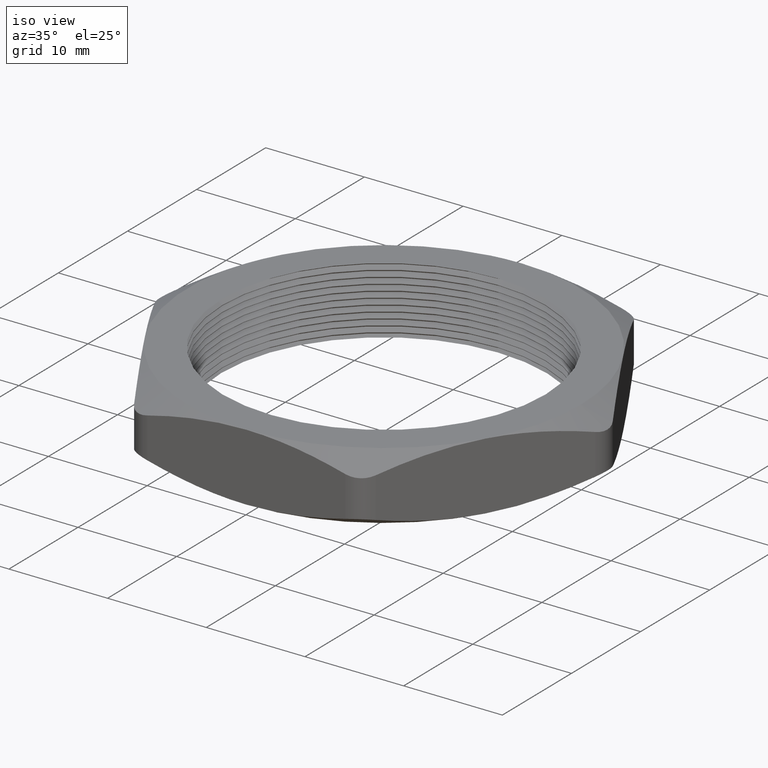
[diagram: clean part render]
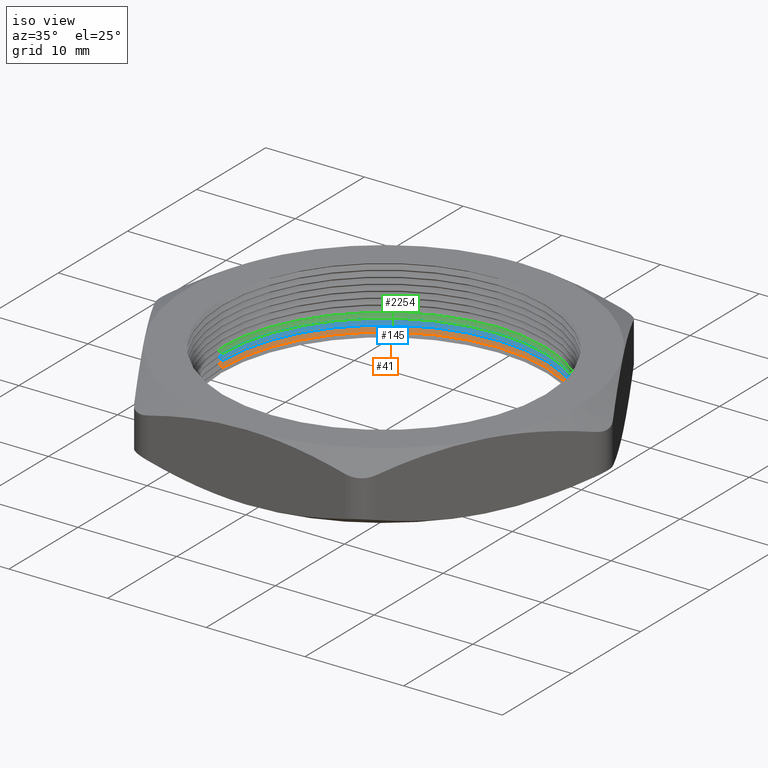
[diagram: same view with three faces highlighted in distinct colors, each labeled with its STEP entity id]
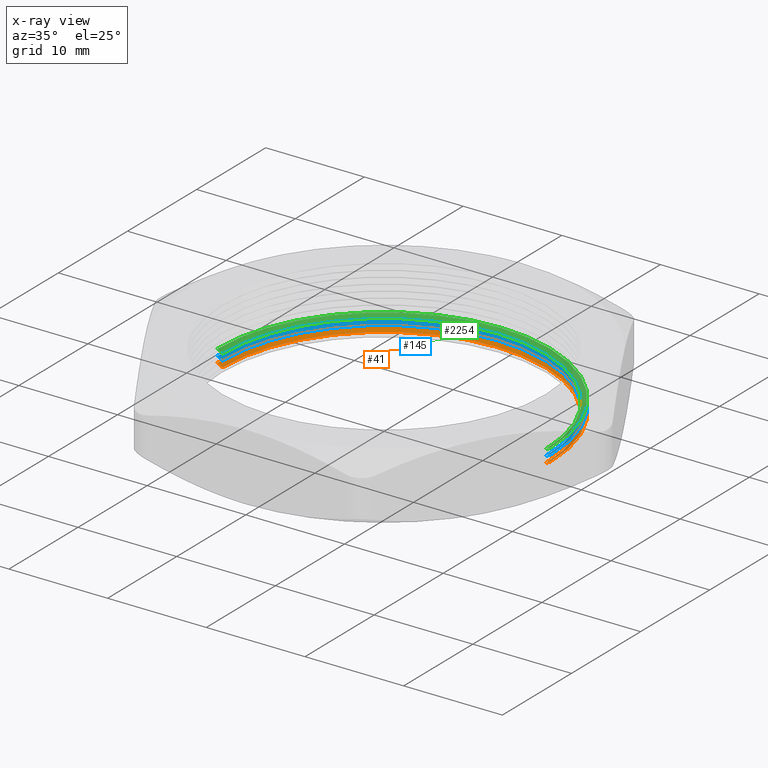
[diagram: x-ray of the same camera — body ghosted, the three highlighted faces saturated]
A machine part, iso view with three faces highlighted in distinct colors.
The next image is the same camera in x-ray (body ghosted, the three faces saturated) — at least one of them is partly hidden behind the body in this view.
Their STEP definitions:

[orange] entity #41 — the highlighted conical surface has half-angle 60 deg.
#40 = EDGE_CURVE ( 'NONE', #2501, #2505, #359, .T. ) ;
#41 = ADVANCED_FACE ( 'NONE', ( #350 ), #349, .F. ) ;
#42 = EDGE_LOOP ( 'NONE', ( #43, #44, #45, #46 ) ) ;
#43 = ORIENTED_EDGE ( 'NONE', *, *, #2508, .F. ) ;
#44 = ORIENTED_EDGE ( 'NONE', *, *, #2629, .F. ) ;
#45 = ORIENTED_EDGE ( 'NONE', *, *, #2500, .T. ) ;
#46 = ORIENTED_EDGE ( 'NONE', *, *, #40, .T. ) ;
#349 = CONICAL_SURFACE ( 'NONE', #408, 0.6449999999999999100, 1.047197551196592500 ) ;
#350 = FACE_OUTER_BOUND ( 'NONE', #42, .T. ) ;
#351 = DIRECTION ( 'NONE',  ( 1.000000000000000000, 0.0000000000000000000, 0.0000000000000000000 ) ) ;
#352 = DIRECTION ( 'NONE',  ( 0.0000000000000000000, 0.0000000000000000000, 1.000000000000000000 ) ) ;
#353 = CARTESIAN_POINT ( 'NONE',  ( 0.0000000000000000000, 0.0000000000000000000, 0.03345299461620768200 ) ) ;
#354 = AXIS2_PLACEMENT_3D ( 'NONE', #353, #352, #351 ) ;
#359 = CIRCLE ( 'NONE', #354, 0.6650000000000000400 ) ;
#405 = DIRECTION ( 'NONE',  ( 1.000000000000000000, 0.0000000000000000000, 0.0000000000000000000 ) ) ;
#406 = DIRECTION ( 'NONE',  ( 0.0000000000000000000, 0.0000000000000000000, 1.000000000000000000 ) ) ;
#407 = CARTESIAN_POINT ( 'NONE',  ( 0.0000000000000000000, 0.0000000000000000000, 0.02190598923241499400 ) ) ;
#408 = AXIS2_PLACEMENT_3D ( 'NONE', #407, #406, #405 ) ;
#1634 = CARTESIAN_POINT ( 'NONE',  ( -0.6650000000000000400, 0.0000000000000000000, 0.03345299461620768200 ) ) ;
#1640 = CARTESIAN_POINT ( 'NONE',  ( 0.6650000000000000400, 8.143901214329899300E-017, 0.03345299461620768200 ) ) ;
#1641 = DIRECTION ( 'NONE',  ( 0.8660254037844360400, 0.0000000000000000000, 0.5000000000000045500 ) ) ;
#1642 = VECTOR ( 'NONE', #1641, 39.37007874015748100 ) ;
#1643 = CARTESIAN_POINT ( 'NONE',  ( 0.6449999999999999100, 0.0000000000000000000, 0.02190598923241499400 ) ) ;
#1648 = LINE ( 'NONE', #1643, #1642 ) ;
#1690 = CARTESIAN_POINT ( 'NONE',  ( 0.6449999999999999100, 7.898971854500428000E-017, 0.02190598923241499400 ) ) ;
#1691 = CARTESIAN_POINT ( 'NONE',  ( -0.6449999999999999100, 0.0000000000000000000, 0.02190598923241499400 ) ) ;
#1692 = DIRECTION ( 'NONE',  ( -0.8660254037844360400, 1.060575238724903700E-016, 0.5000000000000045500 ) ) ;
#1693 = VECTOR ( 'NONE', #1692, 39.37007874015748100 ) ;
#1694 = CARTESIAN_POINT ( 'NONE',  ( -0.6449999999999999100, 7.898971854500428000E-017, 0.02190598923241499400 ) ) ;
#1695 = LINE ( 'NONE', #1694, #1693 ) ;
#1818 = DIRECTION ( 'NONE',  ( 0.0000000000000000000, 0.0000000000000000000, 1.000000000000000000 ) ) ;
#1819 = AXIS2_PLACEMENT_3D ( 'NONE', #1825, #1818, #1884 ) ;
#1820 = CIRCLE ( 'NONE', #1819, 0.6449999999999999100 ) ;
#1825 = CARTESIAN_POINT ( 'NONE',  ( 0.0000000000000000000, 0.0000000000000000000, 0.02190598923241499400 ) ) ;
#1884 = DIRECTION ( 'NONE',  ( 1.000000000000000000, 0.0000000000000000000, 0.0000000000000000000 ) ) ;
#2500 = EDGE_CURVE ( 'NONE', #2510, #2501, #1648, .T. ) ;
#2501 = VERTEX_POINT ( 'NONE', #1640 ) ;
#2505 = VERTEX_POINT ( 'NONE', #1634 ) ;
#2508 = EDGE_CURVE ( 'NONE', #2509, #2505, #1695, .T. ) ;
#2509 = VERTEX_POINT ( 'NONE', #1691 ) ;
#2510 = VERTEX_POINT ( 'NONE', #1690 ) ;
#2629 = EDGE_CURVE ( 'NONE', #2510, #2509, #1820, .T. ) ;

[blue] entity #145 — the highlighted conical surface has half-angle 60 deg.
#19 = ORIENTED_EDGE ( 'NONE', *, *, #2359, .F. ) ;
#20 = ORIENTED_EDGE ( 'NONE', *, *, #2155, .T. ) ;
#21 = ORIENTED_EDGE ( 'NONE', *, *, #2186, .T. ) ;
#145 = ADVANCED_FACE ( 'NONE', ( #595 ), #593, .F. ) ;
#147 = ORIENTED_EDGE ( 'NONE', *, *, #2529, .F. ) ;
#151 = EDGE_LOOP ( 'NONE', ( #147, #19, #20, #21 ) ) ;
#590 = DIRECTION ( 'NONE',  ( 1.000000000000000000, 0.0000000000000000000, 0.0000000000000000000 ) ) ;
#591 = DIRECTION ( 'NONE',  ( 0.0000000000000000000, 0.0000000000000000000, 1.000000000000000000 ) ) ;
#592 = AXIS2_PLACEMENT_3D ( 'NONE', #594, #591, #590 ) ;
#593 = CONICAL_SURFACE ( 'NONE', #592, 0.6449999999999999100, 1.047197551196592500 ) ;
#594 = CARTESIAN_POINT ( 'NONE',  ( 0.0000000000000000000, 0.0000000000000000000, 0.04690598923241499900 ) ) ;
#595 = FACE_OUTER_BOUND ( 'NONE', #151, .T. ) ;
#992 = DIRECTION ( 'NONE',  ( 0.8660254037844360400, 0.0000000000000000000, 0.5000000000000045500 ) ) ;
#993 = VECTOR ( 'NONE', #992, 39.37007874015748100 ) ;
#994 = CARTESIAN_POINT ( 'NONE',  ( 0.6449999999999999100, 0.0000000000000000000, 0.04690598923241499900 ) ) ;
#995 = LINE ( 'NONE', #994, #993 ) ;
#996 = CARTESIAN_POINT ( 'NONE',  ( 0.6650000000000000400, 8.143901214329899300E-017, 0.05845299461620769000 ) ) ;
#1017 = DIRECTION ( 'NONE',  ( 1.000000000000000000, 0.0000000000000000000, 0.0000000000000000000 ) ) ;
#1018 = DIRECTION ( 'NONE',  ( 0.0000000000000000000, 0.0000000000000000000, 1.000000000000000000 ) ) ;
#1019 = AXIS2_PLACEMENT_3D ( 'NONE', #1024, #1018, #1017 ) ;
#1020 = CIRCLE ( 'NONE', #1019, 0.6650000000000000400 ) ;
#1024 = CARTESIAN_POINT ( 'NONE',  ( 0.0000000000000000000, 0.0000000000000000000, 0.05845299461620769000 ) ) ;
#1345 = DIRECTION ( 'NONE',  ( 1.000000000000000000, 0.0000000000000000000, 0.0000000000000000000 ) ) ;
#1346 = DIRECTION ( 'NONE',  ( 0.0000000000000000000, 0.0000000000000000000, 1.000000000000000000 ) ) ;
#1347 = CARTESIAN_POINT ( 'NONE',  ( 0.0000000000000000000, 0.0000000000000000000, 0.04690598923241499900 ) ) ;
#1348 = AXIS2_PLACEMENT_3D ( 'NONE', #1347, #1346, #1345 ) ;
#1349 = CIRCLE ( 'NONE', #1348, 0.6449999999999999100 ) ;
#1702 = CARTESIAN_POINT ( 'NONE',  ( 0.6449999999999999100, 7.898971854500428000E-017, 0.04690598923241499900 ) ) ;
#1707 = CARTESIAN_POINT ( 'NONE',  ( -0.6449999999999999100, 0.0000000000000000000, 0.04690598923241499900 ) ) ;
#1708 = DIRECTION ( 'NONE',  ( -0.8660254037844360400, 1.060575238724903700E-016, 0.5000000000000045500 ) ) ;
#1709 = VECTOR ( 'NONE', #1708, 39.37007874015748100 ) ;
#1710 = CARTESIAN_POINT ( 'NONE',  ( -0.6449999999999999100, 7.898971854500428000E-017, 0.04690598923241499900 ) ) ;
#1711 = LINE ( 'NONE', #1710, #1709 ) ;
#1717 = CARTESIAN_POINT ( 'NONE',  ( -0.6650000000000000400, 0.0000000000000000000, 0.05845299461620769000 ) ) ;
#2154 = VERTEX_POINT ( 'NONE', #996 ) ;
#2155 = EDGE_CURVE ( 'NONE', #2533, #2154, #995, .T. ) ;
#2186 = EDGE_CURVE ( 'NONE', #2154, #2527, #1020, .T. ) ;
#2359 = EDGE_CURVE ( 'NONE', #2533, #2530, #1349, .T. ) ;
#2527 = VERTEX_POINT ( 'NONE', #1717 ) ;
#2529 = EDGE_CURVE ( 'NONE', #2530, #2527, #1711, .T. ) ;
#2530 = VERTEX_POINT ( 'NONE', #1707 ) ;
#2533 = VERTEX_POINT ( 'NONE', #1702 ) ;

[green] entity #2254 — the highlighted conical surface has half-angle 60 deg.
#273 = EDGE_CURVE ( 'NONE', #2129, #2130, #829, .T. ) ;
#821 = DIRECTION ( 'NONE',  ( 1.000000000000000000, 0.0000000000000000000, 0.0000000000000000000 ) ) ;
#822 = DIRECTION ( 'NONE',  ( 0.0000000000000000000, 0.0000000000000000000, 1.000000000000000000 ) ) ;
#823 = CARTESIAN_POINT ( 'NONE',  ( 0.0000000000000000000, 0.0000000000000000000, 0.07190598923241500700 ) ) ;
#824 = AXIS2_PLACEMENT_3D ( 'NONE', #823, #822, #821 ) ;
#829 = CIRCLE ( 'NONE', #824, 0.6449999999999999100 ) ;
#910 = CARTESIAN_POINT ( 'NONE',  ( -0.6449999999999999100, 0.0000000000000000000, 0.07190598923241500700 ) ) ;
#911 = CARTESIAN_POINT ( 'NONE',  ( 0.6449999999999999100, 7.898971854500428000E-017, 0.07190598923241500700 ) ) ;
#912 = CARTESIAN_POINT ( 'NONE',  ( -0.6650000000000000400, 0.0000000000000000000, 0.08345299461620769900 ) ) ;
#946 = DIRECTION ( 'NONE',  ( -0.8660254037844360400, 1.060575238724903700E-016, 0.5000000000000045500 ) ) ;
#947 = VECTOR ( 'NONE', #946, 39.37007874015748100 ) ;
#948 = CARTESIAN_POINT ( 'NONE',  ( -0.6449999999999999100, 7.898971854500428000E-017, 0.07190598923241500700 ) ) ;
#949 = LINE ( 'NONE', #948, #947 ) ;
#950 = CARTESIAN_POINT ( 'NONE',  ( 0.6650000000000000400, 8.143901214329899300E-017, 0.08345299461620769900 ) ) ;
#1156 = DIRECTION ( 'NONE',  ( 1.000000000000000000, 0.0000000000000000000, 0.0000000000000000000 ) ) ;
#1157 = DIRECTION ( 'NONE',  ( 0.0000000000000000000, 0.0000000000000000000, 1.000000000000000000 ) ) ;
#1158 = CARTESIAN_POINT ( 'NONE',  ( 0.0000000000000000000, 0.0000000000000000000, 0.07190598923241500700 ) ) ;
#1159 = AXIS2_PLACEMENT_3D ( 'NONE', #1158, #1157, #1156 ) ;
#1160 = CONICAL_SURFACE ( 'NONE', #1159, 0.6449999999999999100, 1.047197551196592500 ) ;
#1161 = FACE_OUTER_BOUND ( 'NONE', #2267, .T. ) ;
#1204 = DIRECTION ( 'NONE',  ( 1.000000000000000000, 0.0000000000000000000, 0.0000000000000000000 ) ) ;
#1205 = DIRECTION ( 'NONE',  ( 0.0000000000000000000, 0.0000000000000000000, 1.000000000000000000 ) ) ;
#1206 = CARTESIAN_POINT ( 'NONE',  ( 0.0000000000000000000, 0.0000000000000000000, 0.08345299461620769900 ) ) ;
#1207 = AXIS2_PLACEMENT_3D ( 'NONE', #1206, #1205, #1204 ) ;
#1208 = CIRCLE ( 'NONE', #1207, 0.6650000000000000400 ) ;
#1612 = DIRECTION ( 'NONE',  ( 0.8660254037844360400, 0.0000000000000000000, 0.5000000000000045500 ) ) ;
#1613 = VECTOR ( 'NONE', #1612, 39.37007874015748100 ) ;
#1614 = CARTESIAN_POINT ( 'NONE',  ( 0.6449999999999999100, 0.0000000000000000000, 0.07190598923241500700 ) ) ;
#1615 = LINE ( 'NONE', #1614, #1613 ) ;
#2127 = VERTEX_POINT ( 'NONE', #912 ) ;
#2129 = VERTEX_POINT ( 'NONE', #911 ) ;
#2130 = VERTEX_POINT ( 'NONE', #910 ) ;
#2139 = VERTEX_POINT ( 'NONE', #950 ) ;
#2140 = EDGE_CURVE ( 'NONE', #2130, #2127, #949, .T. ) ;
#2254 = ADVANCED_FACE ( 'NONE', ( #1161 ), #1160, .F. ) ;
#2261 = ORIENTED_EDGE ( 'NONE', *, *, #2140, .F. ) ;
#2263 = ORIENTED_EDGE ( 'NONE', *, *, #2486, .T. ) ;
#2264 = ORIENTED_EDGE ( 'NONE', *, *, #273, .F. ) ;
#2265 = EDGE_CURVE ( 'NONE', #2139, #2127, #1208, .T. ) ;
#2266 = ORIENTED_EDGE ( 'NONE', *, *, #2265, .T. ) ;
#2267 = EDGE_LOOP ( 'NONE', ( #2261, #2264, #2263, #2266 ) ) ;
#2486 = EDGE_CURVE ( 'NONE', #2129, #2139, #1615, .T. ) ;